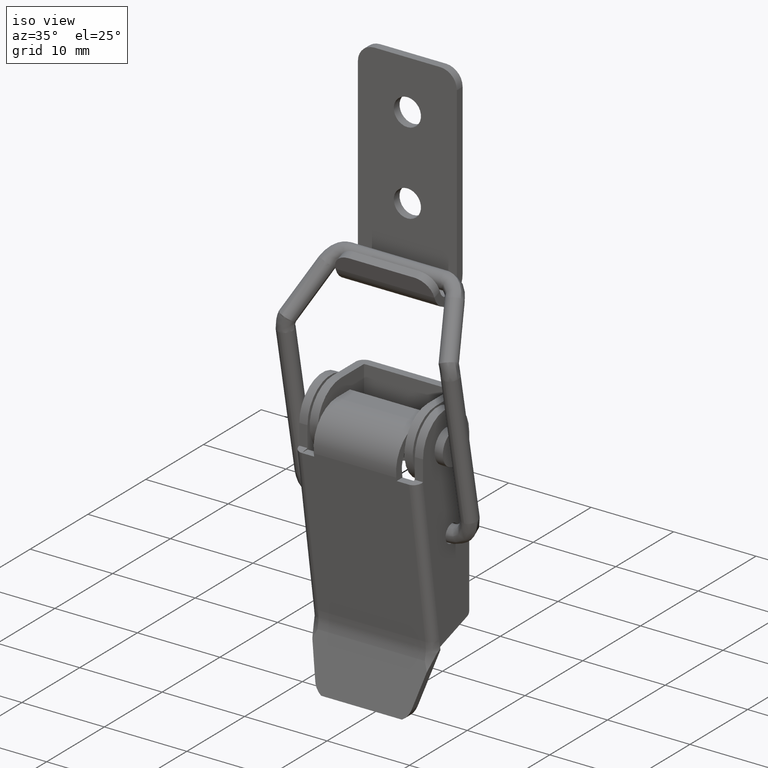
[diagram: clean part render]
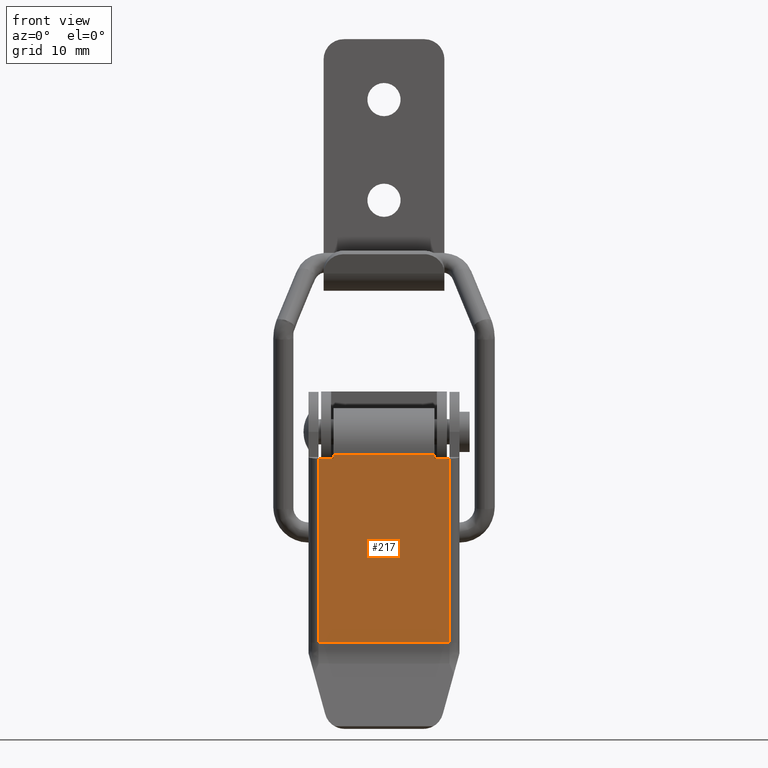
[diagram: tour spotlight — one face highlighted and labeled with its STEP entity id]
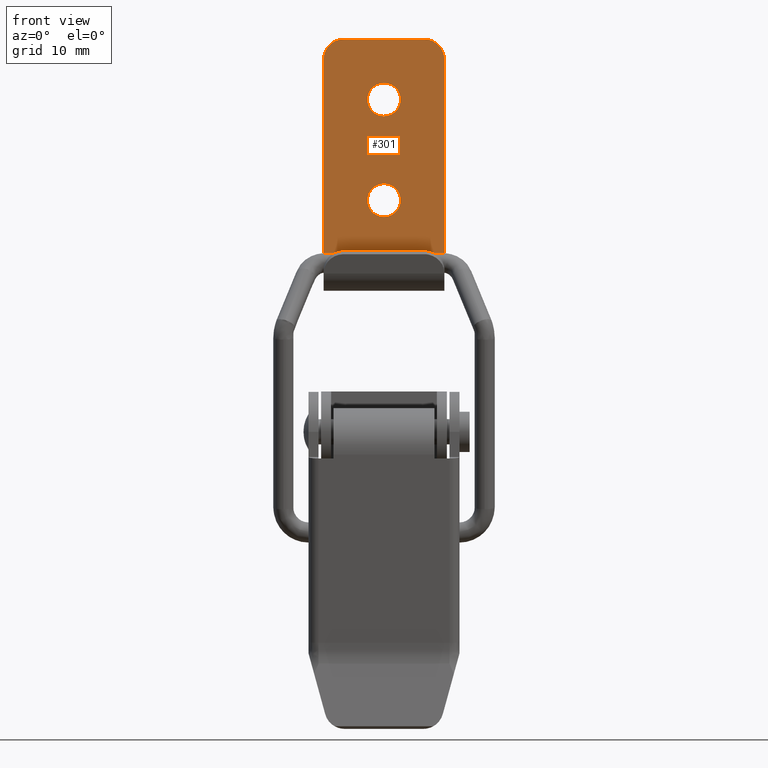
[diagram: tour spotlight — one face highlighted and labeled with its STEP entity id]
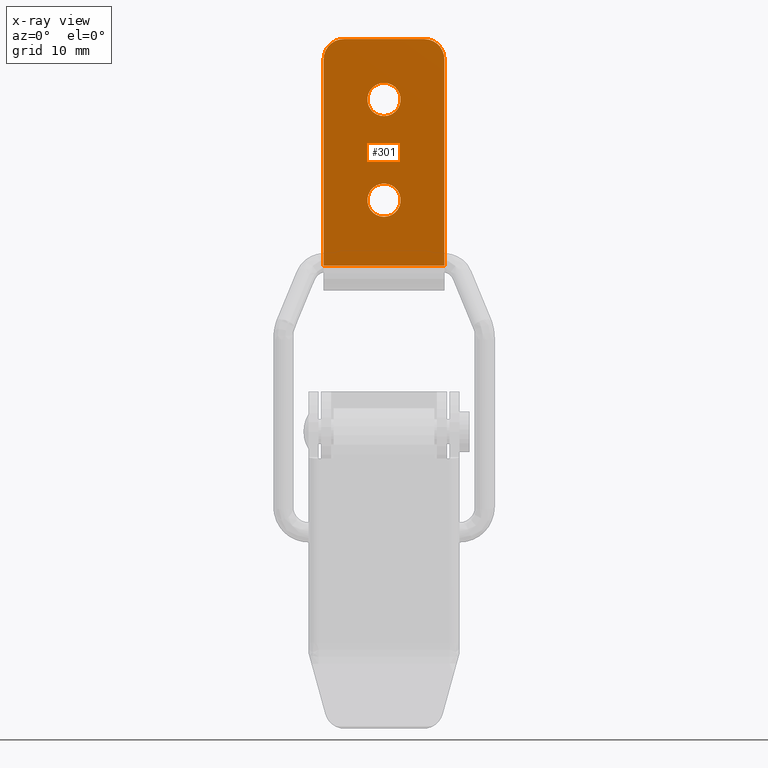
[diagram: x-ray of the same camera — body ghosted, this tour face saturated]
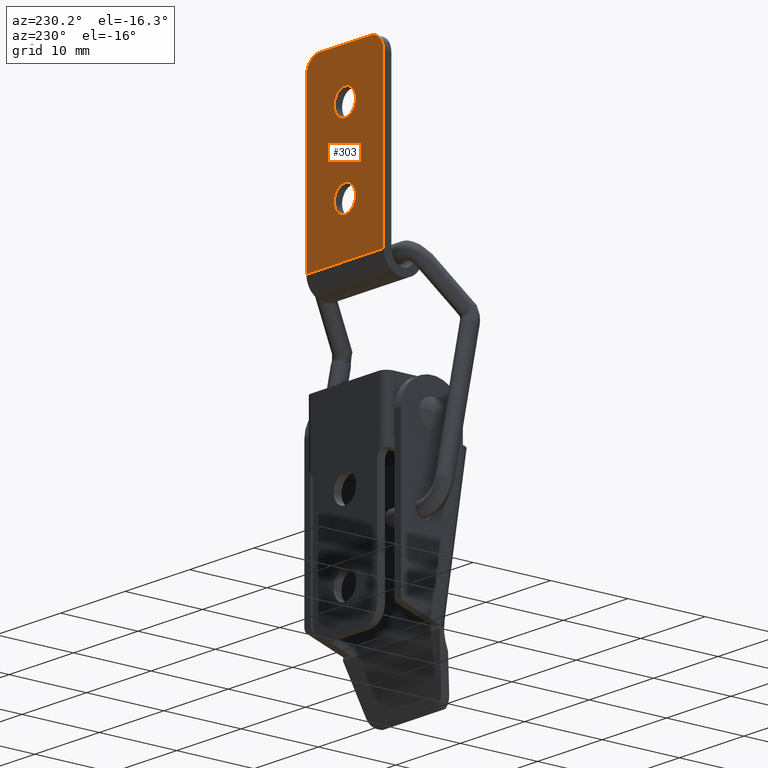
[diagram: tour spotlight — one face highlighted and labeled with its STEP entity id]
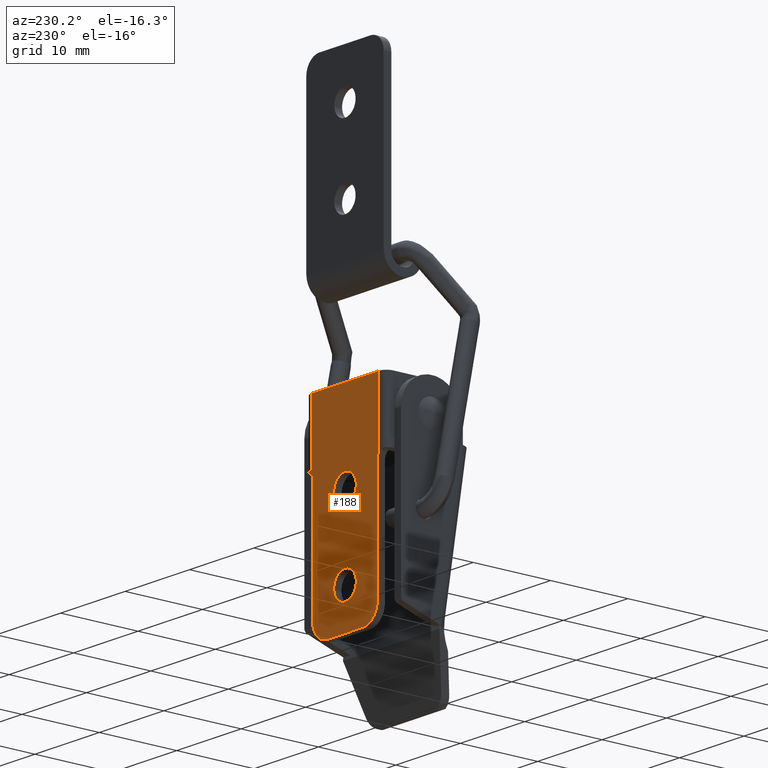
[diagram: tour spotlight — one face highlighted and labeled with its STEP entity id]
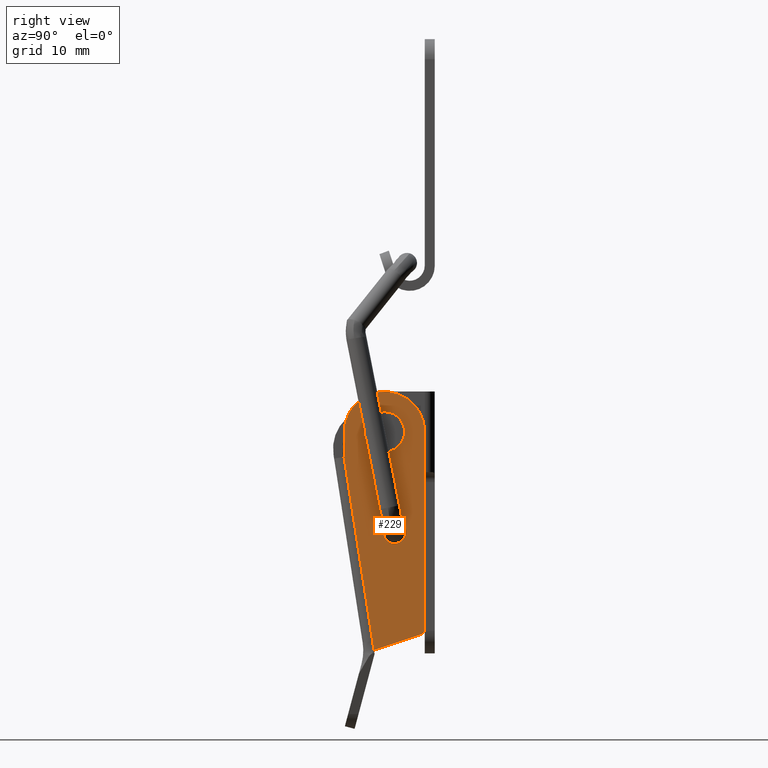
[diagram: tour spotlight — one face highlighted and labeled with its STEP entity id]
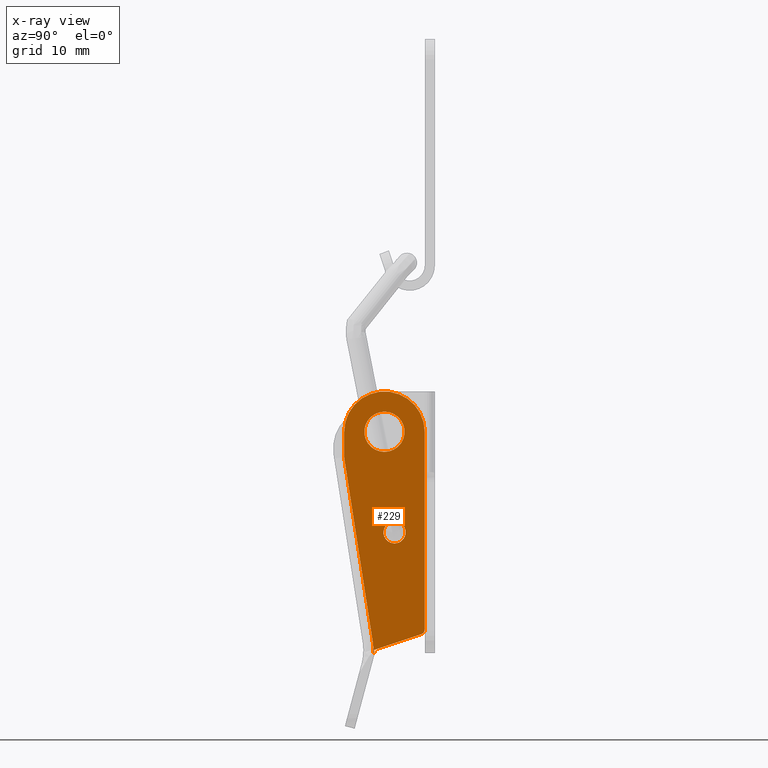
[diagram: x-ray of the same camera — body ghosted, this tour face saturated]
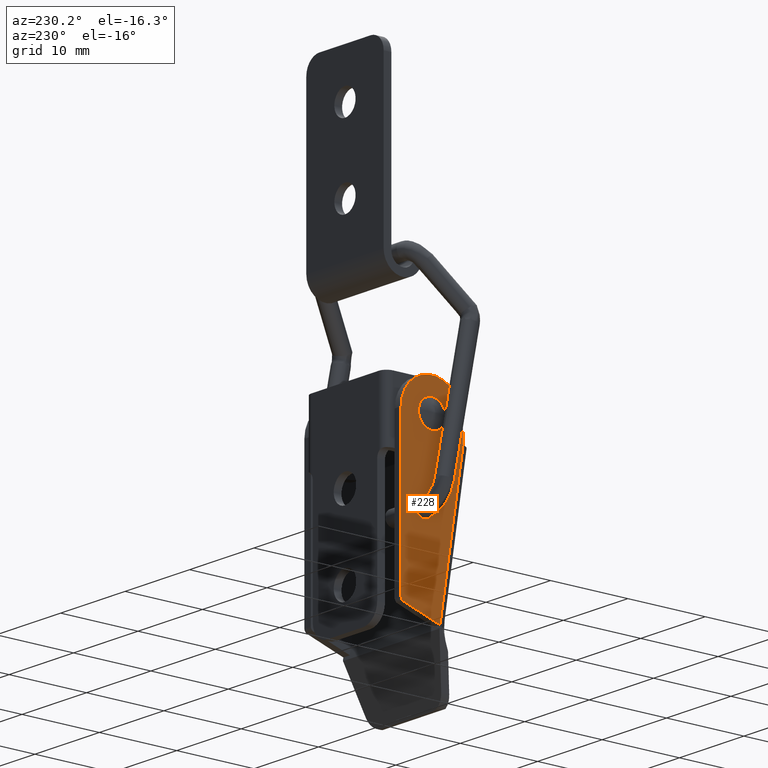
[diagram: tour spotlight — one face highlighted and labeled with its STEP entity id]
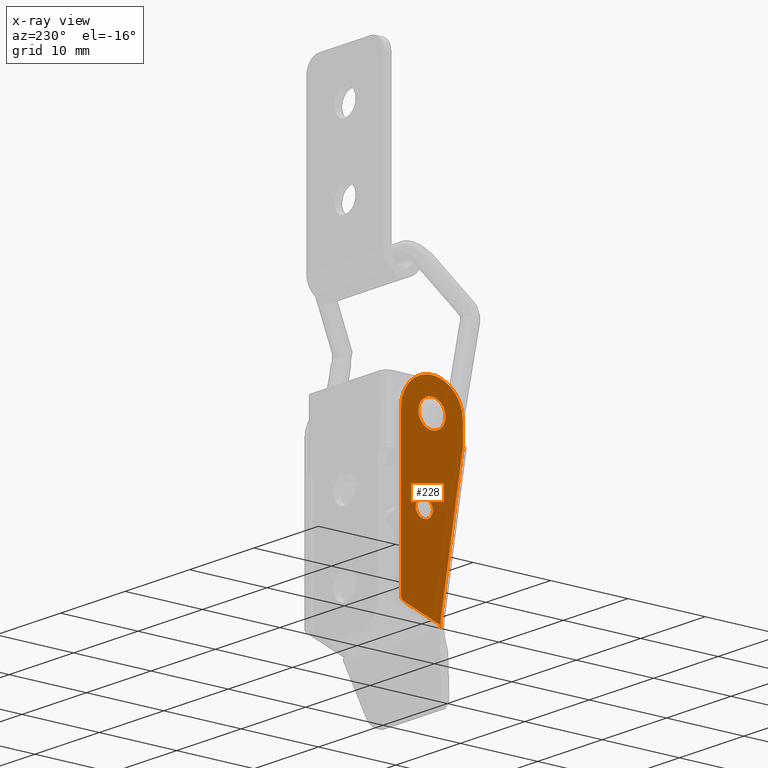
[diagram: x-ray of the same camera — body ghosted, this tour face saturated]
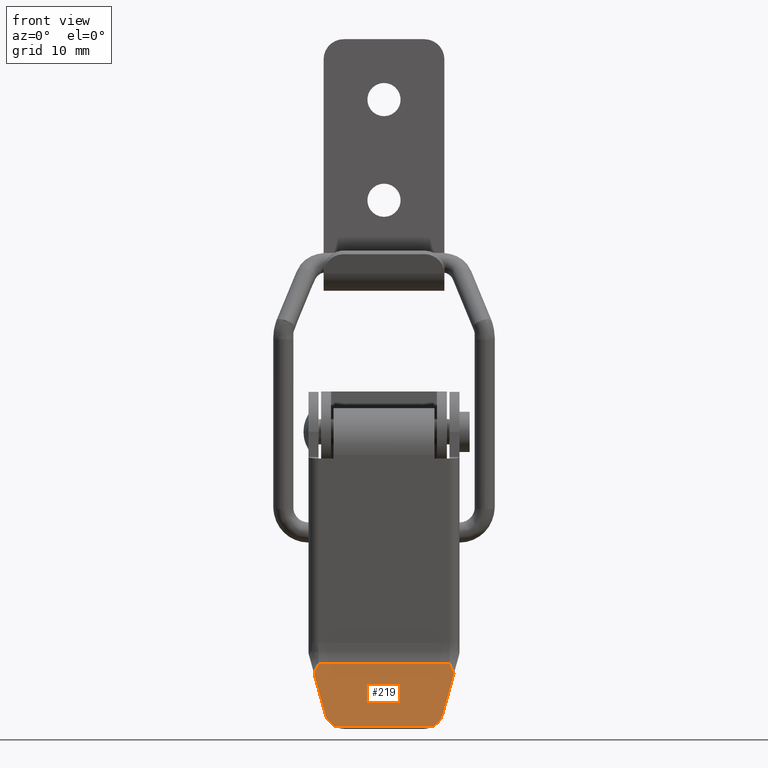
[diagram: tour spotlight — one face highlighted and labeled with its STEP entity id]
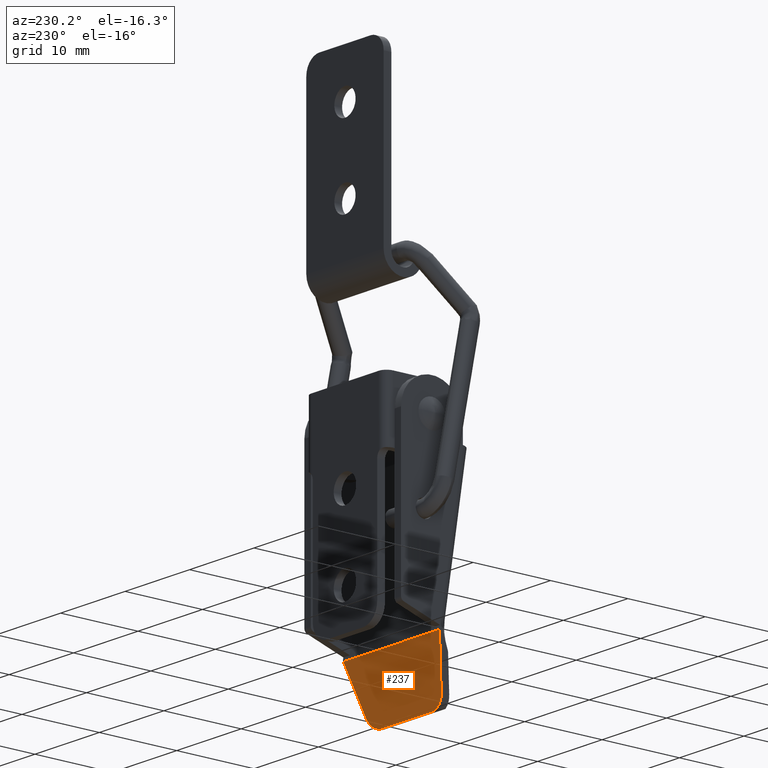
[diagram: tour spotlight — one face highlighted and labeled with its STEP entity id]
A machine part: a face-by-face anatomy tour. The part has 125 B-rep faces; the first image is the clean iso view, then the 8 largest visible faces are spotlighted one at a time (largest first), each with its STEP entity span.

Face 1 — front view, entity #217. In plain terms, the highlighted planar face has unit normal (0, -0.9882, -0.1532).
Definition (entity closure, byte-faithful):
#217=ADVANCED_FACE('',(#630),#629,.T.);
#629=PLANE('',#1758);
#630=FACE_OUTER_BOUND('',#1759,.T.);
#1755=CARTESIAN_POINT('',(-7.80000000000E+00,-5.34991273716E+00,-3.97358248649E-01));
#1756=DIRECTION('',(0.00000000000E+00,-9.88189297838E-01,-1.53238088081E-01));
#1757=DIRECTION('',(0.00000000000E+00,1.53238088081E-01,-9.88189297838E-01));
#1758=AXIS2_PLACEMENT_3D('',#1755,#1756,#1757);
#1759=EDGE_LOOP('',(#3782,#3783,#3784,#3785,#3786,#3787,#3788,#3789));
#3782=ORIENTED_EDGE('',*,*,#4374,.F.);
#3783=ORIENTED_EDGE('',*,*,#4375,.T.);
#3784=ORIENTED_EDGE('',*,*,#4376,.F.);
#3785=ORIENTED_EDGE('',*,*,#4377,.F.);
#3786=ORIENTED_EDGE('',*,*,#4378,.T.);
#3787=ORIENTED_EDGE('',*,*,#4379,.F.);
#3788=ORIENTED_EDGE('',*,*,#4380,.F.);
#3789=ORIENTED_EDGE('',*,*,#4381,.T.);
#4374=EDGE_CURVE('',#5139,#5234,#5235,.T.);
#4375=EDGE_CURVE('',#5139,#5241,#5242,.T.);
#4376=EDGE_CURVE('',#5248,#5241,#5249,.T.);
#4377=EDGE_CURVE('',#5255,#5248,#5256,.T.);
#4378=EDGE_CURVE('',#5255,#5262,#5263,.T.);
#4379=EDGE_CURVE('',#5269,#5262,#5270,.T.);
#4380=EDGE_CURVE('',#5276,#5269,#5277,.T.);
#4381=EDGE_CURVE('',#5276,#5234,#5283,.T.);
#5139=VERTEX_POINT('',#7172);
#5234=VERTEX_POINT('',#7238);
#5235=LINE('',#7239,#7240);
#5241=VERTEX_POINT('',#7242);
#5242=LINE('',#7243,#7244);
#5248=VERTEX_POINT('',#7246);
#5249=LINE('',#7247,#7248);
#5255=VERTEX_POINT('',#7250);
#5256=LINE('',#7251,#7252);
#5262=VERTEX_POINT('',#7254);
#5263=LINE('',#7255,#7256);
#5269=VERTEX_POINT('',#7258);
#5270=LINE('',#7259,#7260);
#5276=VERTEX_POINT('',#7262);
#5277=LINE('',#7263,#7264);
#5283=LINE('',#7266,#7267);
#7172=CARTESIAN_POINT('',(6.50000000000E+00,-2.16108505760E+00,-2.09612103891E+01));
#7238=CARTESIAN_POINT('',(-6.50000000000E+00,-2.16108505760E+00,-2.09612103891E+01));
#7239=CARTESIAN_POINT('',(6.50000000000E+00,-2.16108505760E+00,-2.09612103891E+01));
#7240=VECTOR('',#7241,1.30000000000E+01);
#7241=DIRECTION('',(-1.00000000000E+00,0.00000000000E+00,0.00000000000E+00));
#7242=CARTESIAN_POINT('',(6.50000000000E+00,-5.00000000000E+00,-2.65384700000E+00));
#7243=CARTESIAN_POINT('',(6.50000000000E+00,-2.16108505760E+00,-2.09612103891E+01));
#7244=VECTOR('',#7245,1.85261704707E+01);
#7245=DIRECTION('',(0.00000000000E+00,-1.53238088081E-01,9.88189297838E-01));
#7246=CARTESIAN_POINT('',(5.00000000000E+00,-5.00000000000E+00,-2.65384700000E+00));
#7247=CARTESIAN_POINT('',(5.00000000000E+00,-5.00000000000E+00,-2.65384700000E+00));
#7248=VECTOR('',#7249,1.50000000000E+00);
#7249=DIRECTION('',(1.00000000000E+00,0.00000000000E+00,0.00000000000E+00));
#7250=CARTESIAN_POINT('',(5.00000000000E+00,-5.06001931174E+00,-2.26679935233E+00));
#7251=CARTESIAN_POINT('',(5.00000000000E+00,-5.06001931174E+00,-2.26679935233E+00));
#7252=VECTOR('',#7253,3.91673587765E-01);
#7253=DIRECTION('',(0.00000000000E+00,1.53238088081E-01,-9.88189297838E-01));
#7254=CARTESIAN_POINT('',(-5.00000000000E+00,-5.06001931174E+00,-2.26679935233E+00));
#7255=CARTESIAN_POINT('',(5.00000000000E+00,-5.06001931174E+00,-2.26679935233E+00));
#7256=VECTOR('',#7257,1.00000000000E+01);
#7257=DIRECTION('',(-1.00000000000E+00,0.00000000000E+00,0.00000000000E+00));
#7258=CARTESIAN_POINT('',(-5.00000000000E+00,-5.00000000000E+00,-2.65384700000E+00));
#7259=CARTESIAN_POINT('',(-5.00000000000E+00,-5.00000000000E+00,-2.65384700000E+00));
#7260=VECTOR('',#7261,3.91673587765E-01);
#7261=DIRECTION('',(0.00000000000E+00,-1.53238088081E-01,9.88189297838E-01));
#7262=CARTESIAN_POINT('',(-6.50000000000E+00,-5.00000000000E+00,-2.65384700000E+00));
#7263=CARTESIAN_POINT('',(-6.50000000000E+00,-5.00000000000E+00,-2.65384700000E+00));
#7264=VECTOR('',#7265,1.50000000000E+00);
#7265=DIRECTION('',(1.00000000000E+00,0.00000000000E+00,0.00000000000E+00));
#7266=CARTESIAN_POINT('',(-6.50000000000E+00,-5.00000000000E+00,-2.65384700000E+00));
#7267=VECTOR('',#7268,1.85261704707E+01);
#7268=DIRECTION('',(0.00000000000E+00,1.53238088081E-01,-9.88189297838E-01));

Face 2 — front view, entity #301. An x-ray twin of the same camera follows (body ghosted, this face saturated) — the face is partly hidden behind the body. In plain terms, the highlighted planar face has unit normal (0, 1, -0).
Definition (entity closure, byte-faithful):
#301=ADVANCED_FACE('',(#1478,#1479,#1480),#1477,.F.);
#1477=PLANE('',#3559);
#1478=FACE_OUTER_BOUND('',#3560,.T.);
#1479=FACE_BOUND('',#3561,.T.);
#1480=FACE_BOUND('',#3562,.T.);
#3556=CARTESIAN_POINT('',(-7.20000000000E+00,1.50000000000E+00,2.50000000000E-01));
#3557=DIRECTION('',(0.00000000000E+00,1.00000000000E+00,-6.26427921881E-16));
#3558=DIRECTION('',(0.00000000000E+00,6.26427921881E-16,1.00000000000E+00));
#3559=AXIS2_PLACEMENT_3D('',#3556,#3557,#3558);
#3560=EDGE_LOOP('',(#4230,#4231,#4232,#4233,#4234,#4235));
#3561=EDGE_LOOP('',(#4236,#4237));
#3562=EDGE_LOOP('',(#4238,#4239));
#4230=ORIENTED_EDGE('',*,*,#4597,.T.);
#4231=ORIENTED_EDGE('',*,*,#4598,.T.);
#4232=ORIENTED_EDGE('',*,*,#4581,.T.);
#4233=ORIENTED_EDGE('',*,*,#4596,.F.);
#4234=ORIENTED_EDGE('',*,*,#4593,.F.);
#4235=ORIENTED_EDGE('',*,*,#4599,.T.);
#4236=ORIENTED_EDGE('',*,*,#4600,.F.);
#4237=ORIENTED_EDGE('',*,*,#4601,.F.);
#4238=ORIENTED_EDGE('',*,*,#4602,.F.);
#4239=ORIENTED_EDGE('',*,*,#4603,.F.);
#4581=EDGE_CURVE('',#6612,#6605,#6613,.T.);
#4593=EDGE_CURVE('',#6685,#6692,#6693,.T.);
#4596=EDGE_CURVE('',#6692,#6605,#6711,.T.);
#4597=EDGE_CURVE('',#6717,#6718,#6719,.T.);
#4598=EDGE_CURVE('',#6718,#6612,#6725,.T.);
#4599=EDGE_CURVE('',#6685,#6717,#6731,.T.);
#4600=EDGE_CURVE('',#6737,#6738,#6739,.T.);
#4601=EDGE_CURVE('',#6738,#6737,#6745,.T.);
#4602=EDGE_CURVE('',#6751,#6752,#6753,.T.);
#4603=EDGE_CURVE('',#6752,#6751,#6759,.T.);
#6605=VERTEX_POINT('',#8303);
#6612=VERTEX_POINT('',#8308);
#6613=LINE('',#8309,#8310);
#6685=VERTEX_POINT('',#8350);
#6692=VERTEX_POINT('',#8354);
#6693=LINE('',#8355,#8356);
#6711=LINE('',#8365,#8366);
#6717=VERTEX_POINT('',#8368);
#6718=VERTEX_POINT('',#8369);
#6719=LINE('',#8370,#8371);
#6725=CIRCLE('',#8376,2.00000000000E+00);
#6731=CIRCLE('',#8380,2.00000000000E+00);
#6737=VERTEX_POINT('',#8381);
#6738=VERTEX_POINT('',#8382);
#6739=CIRCLE('',#8386,1.65000000000E+00);
#6745=CIRCLE('',#8390,1.65000000000E+00);
#6751=VERTEX_POINT('',#8391);
#6752=VERTEX_POINT('',#8392);
#6753=CIRCLE('',#8396,1.65000000000E+00);
#6759=CIRCLE('',#8400,1.65000000000E+00);
#8303=CARTESIAN_POINT('',(-6.00000000000E+00,1.50000000000E+00,2.50000000000E+00));
#8308=CARTESIAN_POINT('',(-6.00000000000E+00,1.50000000000E+00,2.30000000000E+01));
#8309=CARTESIAN_POINT('',(-6.00000000000E+00,1.50000000000E+00,2.30000000000E+01));
#8310=VECTOR('',#8311,2.05000000000E+01);
#8311=DIRECTION('',(0.00000000000E+00,-6.28223760276E-16,-1.00000000000E+00));
#8350=CARTESIAN_POINT('',(6.00000000000E+00,1.50000000000E+00,2.30000000000E+01));
#8354=CARTESIAN_POINT('',(6.00000000000E+00,1.50000000000E+00,2.50000000000E+00));
#8355=CARTESIAN_POINT('',(6.00000000000E+00,1.50000000000E+00,2.30000000000E+01));
#8356=VECTOR('',#8357,2.05000000000E+01);
#8357=DIRECTION('',(0.00000000000E+00,-6.28223760276E-16,-1.00000000000E+00));
#8365=CARTESIAN_POINT('',(6.00000000000E+00,1.50000000000E+00,2.50000000000E+00));
#8366=VECTOR('',#8367,1.20000000000E+01);
#8367=DIRECTION('',(-1.00000000000E+00,0.00000000000E+00,0.00000000000E+00));
#8368=CARTESIAN_POINT('',(4.00000000000E+00,1.50000000000E+00,2.50000000000E+01));
#8369=CARTESIAN_POINT('',(-4.00000000000E+00,1.50000000000E+00,2.50000000000E+01));
#8370=CARTESIAN_POINT('',(4.00000000000E+00,1.50000000000E+00,2.50000000000E+01));
#8371=VECTOR('',#8372,8.00000000000E+00);
#8372=DIRECTION('',(-1.00000000000E+00,0.00000000000E+00,0.00000000000E+00));
#8373=CARTESIAN_POINT('',(-4.00000000000E+00,1.50000000000E+00,2.30000000000E+01));
#8374=DIRECTION('',(0.00000000000E+00,-1.00000000000E+00,6.26427921881E-16));
#8375=DIRECTION('',(-0.00000000000E+00,-6.26427921881E-16,-1.00000000000E+00));
#8376=AXIS2_PLACEMENT_3D('',#8373,#8374,#8375);
#8377=CARTESIAN_POINT('',(4.00000000000E+00,1.50000000000E+00,2.30000000000E+01));
#8378=DIRECTION('',(0.00000000000E+00,-1.00000000000E+00,6.26427921881E-16));
#8379=DIRECTION('',(-0.00000000000E+00,-6.26427921881E-16,-1.00000000000E+00));
#8380=AXIS2_PLACEMENT_3D('',#8377,#8378,#8379);
#8381=CARTESIAN_POINT('',(2.22044604925E-16,1.50000000000E+00,1.73500000000E+01));
#8382=CARTESIAN_POINT('',(0.00000000000E+00,1.50000000000E+00,2.06500000000E+01));
#8383=CARTESIAN_POINT('',(0.00000000000E+00,1.50000000000E+00,1.90000000000E+01));
#8384=DIRECTION('',(-0.00000000000E+00,-1.00000000000E+00,0.00000000000E+00));
#8385=DIRECTION('',(-1.22460635382E-16,0.00000000000E+00,1.00000000000E+00));
#8386=AXIS2_PLACEMENT_3D('',#8383,#8384,#8385);
#8387=CARTESIAN_POINT('',(0.00000000000E+00,1.50000000000E+00,1.90000000000E+01));
#8388=DIRECTION('',(-0.00000000000E+00,-1.00000000000E+00,0.00000000000E+00));
#8389=DIRECTION('',(-1.22460635382E-16,0.00000000000E+00,1.00000000000E+00));
#8390=AXIS2_PLACEMENT_3D('',#8387,#8388,#8389);
#8391=CARTESIAN_POINT('',(2.22044604925E-16,1.50000000000E+00,7.35000000000E+00));
#8392=CARTESIAN_POINT('',(0.00000000000E+00,1.50000000000E+00,1.06500000000E+01));
#8393=CARTESIAN_POINT('',(0.00000000000E+00,1.50000000000E+00,9.00000000000E+00));
#8394=DIRECTION('',(-0.00000000000E+00,-1.00000000000E+00,0.00000000000E+00));
#8395=DIRECTION('',(-1.22460635382E-16,0.00000000000E+00,1.00000000000E+00));
#8396=AXIS2_PLACEMENT_3D('',#8393,#8394,#8395);
#8397=CARTESIAN_POINT('',(0.00000000000E+00,1.50000000000E+00,9.00000000000E+00));
#8398=DIRECTION('',(-0.00000000000E+00,-1.00000000000E+00,0.00000000000E+00));
#8399=DIRECTION('',(-1.22460635382E-16,0.00000000000E+00,1.00000000000E+00));
#8400=AXIS2_PLACEMENT_3D('',#8397,#8398,#8399);

Face 3 — auxiliary view, entity #303. In plain terms, the highlighted planar face has unit normal (0, -1, 0).
Definition (entity closure, byte-faithful):
#303=ADVANCED_FACE('',(#1500,#1501,#1502),#1499,.F.);
#1499=PLANE('',#3571);
#1500=FACE_OUTER_BOUND('',#3572,.T.);
#1501=FACE_BOUND('',#3573,.T.);
#1502=FACE_BOUND('',#3574,.T.);
#3568=CARTESIAN_POINT('',(-7.20000000000E+00,2.50000000000E+00,2.72500000000E+01));
#3569=DIRECTION('',(0.00000000000E+00,-1.00000000000E+00,6.36065274525E-16));
#3570=DIRECTION('',(0.00000000000E+00,-6.36065274525E-16,-1.00000000000E+00));
#3571=AXIS2_PLACEMENT_3D('',#3568,#3569,#3570);
#3572=EDGE_LOOP('',(#4244,#4245,#4246,#4247,#4248,#4249));
#3573=EDGE_LOOP('',(#4250,#4251));
#3574=EDGE_LOOP('',(#4252,#4253));
#4244=ORIENTED_EDGE('',*,*,#4583,.T.);
#4245=ORIENTED_EDGE('',*,*,#4607,.T.);
#4246=ORIENTED_EDGE('',*,*,#4604,.F.);
#4247=ORIENTED_EDGE('',*,*,#4608,.T.);
#4248=ORIENTED_EDGE('',*,*,#4591,.F.);
#4249=ORIENTED_EDGE('',*,*,#4609,.T.);
#4250=ORIENTED_EDGE('',*,*,#4610,.T.);
#4251=ORIENTED_EDGE('',*,*,#4611,.T.);
#4252=ORIENTED_EDGE('',*,*,#4612,.T.);
#4253=ORIENTED_EDGE('',*,*,#4613,.T.);
#4583=EDGE_CURVE('',#6626,#6619,#6627,.T.);
#4591=EDGE_CURVE('',#6671,#6678,#6679,.T.);
#4604=EDGE_CURVE('',#6765,#6766,#6767,.T.);
#4607=EDGE_CURVE('',#6619,#6766,#6785,.T.);
#4608=EDGE_CURVE('',#6765,#6678,#6791,.T.);
#4609=EDGE_CURVE('',#6671,#6626,#6797,.T.);
#4610=EDGE_CURVE('',#6803,#6804,#6805,.T.);
#4611=EDGE_CURVE('',#6804,#6803,#6811,.T.);
#4612=EDGE_CURVE('',#6817,#6818,#6819,.T.);
#4613=EDGE_CURVE('',#6818,#6817,#6825,.T.);
#6619=VERTEX_POINT('',#8312);
#6626=VERTEX_POINT('',#8316);
#6627=LINE('',#8317,#8318);
#6671=VERTEX_POINT('',#8341);
#6678=VERTEX_POINT('',#8346);
#6679=LINE('',#8347,#8348);
#6765=VERTEX_POINT('',#8401);
#6766=VERTEX_POINT('',#8402);
#6767=LINE('',#8403,#8404);
#6785=CIRCLE('',#8415,2.00000000000E+00);
#6791=CIRCLE('',#8419,2.00000000000E+00);
#6797=LINE('',#8420,#8421);
#6803=VERTEX_POINT('',#8423);
#6804=VERTEX_POINT('',#8424);
#6805=CIRCLE('',#8428,1.65000000000E+00);
#6811=CIRCLE('',#8432,1.65000000000E+00);
#6817=VERTEX_POINT('',#8433);
#6818=VERTEX_POINT('',#8434);
#6819=CIRCLE('',#8438,1.65000000000E+00);
#6825=CIRCLE('',#8442,1.65000000000E+00);
#8312=CARTESIAN_POINT('',(-6.00000000000E+00,2.50000000000E+00,2.30000000000E+01));
#8316=CARTESIAN_POINT('',(-6.00000000000E+00,2.50000000000E+00,2.50000000000E+00));
#8317=CARTESIAN_POINT('',(-6.00000000000E+00,2.50000000000E+00,2.50000000000E+00));
#8318=VECTOR('',#8319,2.05000000000E+01);
#8319=DIRECTION('',(0.00000000000E+00,6.28223760276E-16,1.00000000000E+00));
#8341=CARTESIAN_POINT('',(6.00000000000E+00,2.50000000000E+00,2.50000000000E+00));
#8346=CARTESIAN_POINT('',(6.00000000000E+00,2.50000000000E+00,2.30000000000E+01));
#8347=CARTESIAN_POINT('',(6.00000000000E+00,2.50000000000E+00,2.50000000000E+00));
#8348=VECTOR('',#8349,2.05000000000E+01);
#8349=DIRECTION('',(0.00000000000E+00,6.28223760276E-16,1.00000000000E+00));
#8401=CARTESIAN_POINT('',(4.00000000000E+00,2.50000000000E+00,2.50000000000E+01));
#8402=CARTESIAN_POINT('',(-4.00000000000E+00,2.50000000000E+00,2.50000000000E+01));
#8403=CARTESIAN_POINT('',(4.00000000000E+00,2.50000000000E+00,2.50000000000E+01));
#8404=VECTOR('',#8405,8.00000000000E+00);
#8405=DIRECTION('',(-1.00000000000E+00,0.00000000000E+00,0.00000000000E+00));
#8412=CARTESIAN_POINT('',(-4.00000000000E+00,2.50000000000E+00,2.30000000000E+01));
#8413=DIRECTION('',(-0.00000000000E+00,1.00000000000E+00,-6.36065274525E-16));
#8414=DIRECTION('',(-0.00000000000E+00,6.36065274525E-16,1.00000000000E+00));
#8415=AXIS2_PLACEMENT_3D('',#8412,#8413,#8414);
#8416=CARTESIAN_POINT('',(4.00000000000E+00,2.50000000000E+00,2.30000000000E+01));
#8417=DIRECTION('',(-0.00000000000E+00,1.00000000000E+00,-6.36065274525E-16));
#8418=DIRECTION('',(-0.00000000000E+00,6.36065274525E-16,1.00000000000E+00));
#8419=AXIS2_PLACEMENT_3D('',#8416,#8417,#8418);
#8420=CARTESIAN_POINT('',(6.00000000000E+00,2.50000000000E+00,2.50000000000E+00));
#8421=VECTOR('',#8422,1.20000000000E+01);
#8422=DIRECTION('',(-1.00000000000E+00,0.00000000000E+00,0.00000000000E+00));
#8423=CARTESIAN_POINT('',(0.00000000000E+00,2.50000000000E+00,2.06500000000E+01));
#8424=CARTESIAN_POINT('',(2.22044604925E-16,2.50000000000E+00,1.73500000000E+01));
#8425=CARTESIAN_POINT('',(0.00000000000E+00,2.50000000000E+00,1.90000000000E+01));
#8426=DIRECTION('',(-0.00000000000E+00,-1.00000000000E+00,0.00000000000E+00));
#8427=DIRECTION('',(-1.22460635382E-16,0.00000000000E+00,1.00000000000E+00));
#8428=AXIS2_PLACEMENT_3D('',#8425,#8426,#8427);
#8429=CARTESIAN_POINT('',(0.00000000000E+00,2.50000000000E+00,1.90000000000E+01));
#8430=DIRECTION('',(-0.00000000000E+00,-1.00000000000E+00,0.00000000000E+00));
#8431=DIRECTION('',(-1.22460635382E-16,0.00000000000E+00,1.00000000000E+00));
#8432=AXIS2_PLACEMENT_3D('',#8429,#8430,#8431);
#8433=CARTESIAN_POINT('',(0.00000000000E+00,2.50000000000E+00,1.06500000000E+01));
#8434=CARTESIAN_POINT('',(2.22044604925E-16,2.50000000000E+00,7.35000000000E+00));
#8435=CARTESIAN_POINT('',(0.00000000000E+00,2.50000000000E+00,9.00000000000E+00));
#8436=DIRECTION('',(-0.00000000000E+00,-1.00000000000E+00,0.00000000000E+00));
#8437=DIRECTION('',(-1.22460635382E-16,0.00000000000E+00,1.00000000000E+00));
#8438=AXIS2_PLACEMENT_3D('',#8435,#8436,#8437);
#8439=CARTESIAN_POINT('',(0.00000000000E+00,2.50000000000E+00,9.00000000000E+00));
#8440=DIRECTION('',(-0.00000000000E+00,-1.00000000000E+00,0.00000000000E+00));
#8441=DIRECTION('',(-1.22460635382E-16,0.00000000000E+00,1.00000000000E+00));
#8442=AXIS2_PLACEMENT_3D('',#8439,#8440,#8441);

Face 4 — auxiliary view, entity #188. In plain terms, the highlighted planar face has unit normal (0, 1, 0).
Definition (entity closure, byte-faithful):
#188=ADVANCED_FACE('',(#334,#335,#336),#333,.T.);
#333=PLANE('',#1596);
#334=FACE_OUTER_BOUND('',#1597,.T.);
#335=FACE_BOUND('',#1598,.T.);
#336=FACE_BOUND('',#1599,.T.);
#1593=CARTESIAN_POINT('',(-6.30000000000E+00,0.00000000000E+00,-2.86000000000E+01));
#1594=DIRECTION('',(0.00000000000E+00,1.00000000000E+00,0.00000000000E+00));
#1595=DIRECTION('',(0.00000000000E+00,0.00000000000E+00,1.00000000000E+00));
#1596=AXIS2_PLACEMENT_3D('',#1593,#1594,#1595);
#1597=EDGE_LOOP('',(#3631,#3632,#3633,#3634,#3635,#3636,#3637,#3638,#3639,#3640));
#1598=EDGE_LOOP('',(#3641,#3642));
#1599=EDGE_LOOP('',(#3643,#3644));
#3631=ORIENTED_EDGE('',*,*,#4303,.F.);
#3632=ORIENTED_EDGE('',*,*,#4283,.T.);
#3633=ORIENTED_EDGE('',*,*,#4304,.T.);
#3634=ORIENTED_EDGE('',*,*,#4305,.F.);
#3635=ORIENTED_EDGE('',*,*,#4306,.F.);
#3636=ORIENTED_EDGE('',*,*,#4307,.F.);
#3637=ORIENTED_EDGE('',*,*,#4308,.F.);
#3638=ORIENTED_EDGE('',*,*,#4309,.F.);
#3639=ORIENTED_EDGE('',*,*,#4310,.T.);
#3640=ORIENTED_EDGE('',*,*,#4311,.T.);
#3641=ORIENTED_EDGE('',*,*,#4312,.T.);
#3642=ORIENTED_EDGE('',*,*,#4313,.T.);
#3643=ORIENTED_EDGE('',*,*,#4314,.T.);
#3644=ORIENTED_EDGE('',*,*,#4315,.T.);
#4283=EDGE_CURVE('',#4626,#4618,#4627,.T.);
#4303=EDGE_CURVE('',#4626,#4765,#4766,.T.);
#4304=EDGE_CURVE('',#4618,#4772,#4773,.T.);
#4305=EDGE_CURVE('',#4779,#4772,#4780,.T.);
#4306=EDGE_CURVE('',#4786,#4779,#4787,.T.);
#4307=EDGE_CURVE('',#4793,#4786,#4794,.T.);
#4308=EDGE_CURVE('',#4800,#4793,#4801,.T.);
#4309=EDGE_CURVE('',#4807,#4800,#4808,.T.);
#4310=EDGE_CURVE('',#4807,#4814,#4815,.T.);
#4311=EDGE_CURVE('',#4814,#4765,#4821,.T.);
#4312=EDGE_CURVE('',#4827,#4828,#4829,.T.);
#4313=EDGE_CURVE('',#4828,#4827,#4835,.T.);
#4314=EDGE_CURVE('',#4841,#4842,#4843,.T.);
#4315=EDGE_CURVE('',#4842,#4841,#4849,.T.);
#4618=VERTEX_POINT('',#6855);
#4626=VERTEX_POINT('',#6863);
#4627=LINE('',#6864,#6865);
#4765=VERTEX_POINT('',#6952);
#4766=LINE('',#6953,#6954);
#4772=VERTEX_POINT('',#6956);
#4773=CIRCLE('',#6960,1.00000000000E+00);
#4779=VERTEX_POINT('',#6961);
#4780=LINE('',#6962,#6963);
#4786=VERTEX_POINT('',#6965);
#4787=CIRCLE('',#6969,2.25000000000E+00);
#4793=VERTEX_POINT('',#6970);
#4794=LINE('',#6971,#6972);
#4800=VERTEX_POINT('',#6974);
#4801=CIRCLE('',#6978,2.25000000000E+00);
#4807=VERTEX_POINT('',#6979);
#4808=LINE('',#6980,#6981);
#4814=VERTEX_POINT('',#6983);
#4815=CIRCLE('',#6987,1.00000000000E+00);
#4821=LINE('',#6988,#6989);
#4827=VERTEX_POINT('',#6991);
#4828=VERTEX_POINT('',#6992);
#4829=CIRCLE('',#6996,1.75000000000E+00);
#4835=CIRCLE('',#7000,1.75000000000E+00);
#4841=VERTEX_POINT('',#7001);
#4842=VERTEX_POINT('',#7002);
#4843=CIRCLE('',#7006,1.75000000000E+00);
#4849=CIRCLE('',#7010,1.75000000000E+00);
#6855=CARTESIAN_POINT('',(5.25000000000E+00,0.00000000000E+00,-8.33856217223E+00));
#6863=CARTESIAN_POINT('',(5.25000000000E+00,0.00000000000E+00,0.00000000000E+00));
#6864=CARTESIAN_POINT('',(5.25000000000E+00,0.00000000000E+00,0.00000000000E+00));
#6865=VECTOR('',#6866,8.33856217223E+00);
#6866=DIRECTION('',(0.00000000000E+00,0.00000000000E+00,-1.00000000000E+00));
#6952=CARTESIAN_POINT('',(-5.25000000000E+00,0.00000000000E+00,0.00000000000E+00));
#6953=CARTESIAN_POINT('',(5.25000000000E+00,0.00000000000E+00,0.00000000000E+00));
#6954=VECTOR('',#6955,1.05000000000E+01);
#6955=DIRECTION('',(-1.00000000000E+00,0.00000000000E+00,0.00000000000E+00));
#6956=CARTESIAN_POINT('',(5.00000000000E+00,0.00000000000E+00,-9.00000000000E+00));
#6957=CARTESIAN_POINT('',(6.00000000000E+00,0.00000000000E+00,-9.00000000000E+00));
#6958=DIRECTION('',(0.00000000000E+00,-1.00000000000E+00,0.00000000000E+00));
#6959=DIRECTION('',(-0.00000000000E+00,-0.00000000000E+00,-1.00000000000E+00));
#6960=AXIS2_PLACEMENT_3D('',#6957,#6958,#6959);
#6961=CARTESIAN_POINT('',(5.00000000000E+00,0.00000000000E+00,-2.37500000000E+01));
#6962=CARTESIAN_POINT('',(5.00000000000E+00,0.00000000000E+00,-2.37500000000E+01));
#6963=VECTOR('',#6964,1.47500000000E+01);
#6964=DIRECTION('',(0.00000000000E+00,0.00000000000E+00,1.00000000000E+00));
#6965=CARTESIAN_POINT('',(2.75000000000E+00,0.00000000000E+00,-2.60000000000E+01));
#6966=CARTESIAN_POINT('',(2.75000000000E+00,0.00000000000E+00,-2.37500000000E+01));
#6967=DIRECTION('',(0.00000000000E+00,-1.00000000000E+00,0.00000000000E+00));
#6968=DIRECTION('',(-0.00000000000E+00,-0.00000000000E+00,-1.00000000000E+00));
#6969=AXIS2_PLACEMENT_3D('',#6966,#6967,#6968);
#6970=CARTESIAN_POINT('',(-2.75000000000E+00,0.00000000000E+00,-2.60000000000E+01));
#6971=CARTESIAN_POINT('',(-2.75000000000E+00,0.00000000000E+00,-2.60000000000E+01));
#6972=VECTOR('',#6973,5.50000000000E+00);
#6973=DIRECTION('',(1.00000000000E+00,0.00000000000E+00,0.00000000000E+00));
#6974=CARTESIAN_POINT('',(-5.00000000000E+00,0.00000000000E+00,-2.37500000000E+01));
#6975=CARTESIAN_POINT('',(-2.75000000000E+00,0.00000000000E+00,-2.37500000000E+01));
#6976=DIRECTION('',(0.00000000000E+00,-1.00000000000E+00,0.00000000000E+00));
#6977=DIRECTION('',(-0.00000000000E+00,-0.00000000000E+00,-1.00000000000E+00));
#6978=AXIS2_PLACEMENT_3D('',#6975,#6976,#6977);
#6979=CARTESIAN_POINT('',(-5.00000000000E+00,0.00000000000E+00,-9.00000000000E+00));
#6980=CARTESIAN_POINT('',(-5.00000000000E+00,0.00000000000E+00,-9.00000000000E+00));
#6981=VECTOR('',#6982,1.47500000000E+01);
#6982=DIRECTION('',(0.00000000000E+00,0.00000000000E+00,-1.00000000000E+00));
#6983=CARTESIAN_POINT('',(-5.25000000000E+00,0.00000000000E+00,-8.33856217223E+00));
#6984=CARTESIAN_POINT('',(-6.00000000000E+00,0.00000000000E+00,-9.00000000000E+00));
#6985=DIRECTION('',(0.00000000000E+00,-1.00000000000E+00,0.00000000000E+00));
#6986=DIRECTION('',(-0.00000000000E+00,-0.00000000000E+00,-1.00000000000E+00));
#6987=AXIS2_PLACEMENT_3D('',#6984,#6985,#6986);
#6988=CARTESIAN_POINT('',(-5.25000000000E+00,0.00000000000E+00,-8.33856217223E+00));
#6989=VECTOR('',#6990,8.33856217223E+00);
#6990=DIRECTION('',(0.00000000000E+00,0.00000000000E+00,1.00000000000E+00));
#6991=CARTESIAN_POINT('',(0.00000000000E+00,0.00000000000E+00,-1.92500000000E+01));
#6992=CARTESIAN_POINT('',(2.22044604925E-16,0.00000000000E+00,-2.27500000000E+01));
#6993=CARTESIAN_POINT('',(0.00000000000E+00,0.00000000000E+00,-2.10000000000E+01));
#6994=DIRECTION('',(-0.00000000000E+00,-1.00000000000E+00,0.00000000000E+00));
#6995=DIRECTION('',(-1.22460635382E-16,0.00000000000E+00,1.00000000000E+00));
#6996=AXIS2_PLACEMENT_3D('',#6993,#6994,#6995);
#6997=CARTESIAN_POINT('',(0.00000000000E+00,0.00000000000E+00,-2.10000000000E+01));
#6998=DIRECTION('',(-0.00000000000E+00,-1.00000000000E+00,0.00000000000E+00));
#6999=DIRECTION('',(-1.22460635382E-16,0.00000000000E+00,1.00000000000E+00));
#7000=AXIS2_PLACEMENT_3D('',#6997,#6998,#6999);
#7001=CARTESIAN_POINT('',(0.00000000000E+00,0.00000000000E+00,-9.25000000000E+00));
#7002=CARTESIAN_POINT('',(2.22044604925E-16,0.00000000000E+00,-1.27500000000E+01));
#7003=CARTESIAN_POINT('',(0.00000000000E+00,0.00000000000E+00,-1.10000000000E+01));
#7004=DIRECTION('',(-0.00000000000E+00,-1.00000000000E+00,0.00000000000E+00));
#7005=DIRECTION('',(-1.22460635382E-16,0.00000000000E+00,1.00000000000E+00));
#7006=AXIS2_PLACEMENT_3D('',#7003,#7004,#7005);
#7007=CARTESIAN_POINT('',(0.00000000000E+00,0.00000000000E+00,-1.10000000000E+01));
#7008=DIRECTION('',(-0.00000000000E+00,-1.00000000000E+00,0.00000000000E+00));
#7009=DIRECTION('',(-1.22460635382E-16,0.00000000000E+00,1.00000000000E+00));
#7010=AXIS2_PLACEMENT_3D('',#7007,#7008,#7009);

Face 5 — right view, entity #229. An x-ray twin of the same camera follows (body ghosted, this face saturated) — the face is partly hidden behind the body. In plain terms, the highlighted planar face has unit normal (1, 0, 0).
Definition (entity closure, byte-faithful):
#229=ADVANCED_FACE('',(#752,#753,#754),#751,.T.);
#751=PLANE('',#1831);
#752=FACE_OUTER_BOUND('',#1832,.T.);
#753=FACE_BOUND('',#1833,.T.);
#754=FACE_BOUND('',#1834,.T.);
#1828=CARTESIAN_POINT('',(7.50000000000E+00,-4.81279049576E+00,6.60000000000E+00));
#1829=DIRECTION('',(1.00000000000E+00,0.00000000000E+00,0.00000000000E+00));
#1830=DIRECTION('',(0.00000000000E+00,0.00000000000E+00,-1.00000000000E+00));
#1831=AXIS2_PLACEMENT_3D('',#1828,#1829,#1830);
#1832=EDGE_LOOP('',(#3857,#3858,#3859,#3860,#3861,#3862,#3863,#3864,#3865,#3866));
#1833=EDGE_LOOP('',(#3867,#3868));
#1834=EDGE_LOOP('',(#3869,#3870));
#3857=ORIENTED_EDGE('',*,*,#4431,.F.);
#3858=ORIENTED_EDGE('',*,*,#4412,.T.);
#3859=ORIENTED_EDGE('',*,*,#4432,.F.);
#3860=ORIENTED_EDGE('',*,*,#4433,.F.);
#3861=ORIENTED_EDGE('',*,*,#4434,.F.);
#3862=ORIENTED_EDGE('',*,*,#4435,.F.);
#3863=ORIENTED_EDGE('',*,*,#4436,.T.);
#3864=ORIENTED_EDGE('',*,*,#4364,.T.);
#3865=ORIENTED_EDGE('',*,*,#4365,.T.);
#3866=ORIENTED_EDGE('',*,*,#4437,.F.);
#3867=ORIENTED_EDGE('',*,*,#4438,.F.);
#3868=ORIENTED_EDGE('',*,*,#4439,.F.);
#3869=ORIENTED_EDGE('',*,*,#4440,.T.);
#3870=ORIENTED_EDGE('',*,*,#4441,.T.);
#4364=EDGE_CURVE('',#5138,#5160,#5167,.T.);
#4365=EDGE_CURVE('',#5160,#5173,#5174,.T.);
#4412=EDGE_CURVE('',#5492,#5493,#5494,.T.);
#4431=EDGE_CURVE('',#5492,#5622,#5623,.T.);
#4432=EDGE_CURVE('',#5629,#5493,#5630,.T.);
#4433=EDGE_CURVE('',#5636,#5629,#5637,.T.);
#4434=EDGE_CURVE('',#5643,#5636,#5644,.T.);
#4435=EDGE_CURVE('',#5650,#5643,#5651,.T.);
#4436=EDGE_CURVE('',#5650,#5138,#5657,.T.);
#4437=EDGE_CURVE('',#5622,#5173,#5663,.T.);
#4438=EDGE_CURVE('',#5669,#5670,#5671,.T.);
#4439=EDGE_CURVE('',#5670,#5669,#5677,.T.);
#4440=EDGE_CURVE('',#5683,#5684,#5685,.T.);
#4441=EDGE_CURVE('',#5684,#5683,#5691,.T.);
#5138=VERTEX_POINT('',#7171);
#5160=VERTEX_POINT('',#7187);
#5167=CIRCLE('',#7203,6.00000000000E+00);
#5173=VERTEX_POINT('',#7204);
#5174=LINE('',#7205,#7206);
#5492=VERTEX_POINT('',#7390);
#5493=VERTEX_POINT('',#7391);
#5494=CIRCLE('',#7395,5.00000000000E-01);
#5622=VERTEX_POINT('',#7481);
#5623=LINE('',#7482,#7483);
#5629=VERTEX_POINT('',#7485);
#5630=LINE('',#7486,#7487);
#5636=VERTEX_POINT('',#7489);
#5637=CIRCLE('',#7493,4.00000000000E+00);
#5643=VERTEX_POINT('',#7494);
#5644=LINE('',#7495,#7496);
#5650=VERTEX_POINT('',#7498);
#5651=LINE('',#7499,#7500);
#5657=LINE('',#7502,#7503);
#5663=LINE('',#7505,#7506);
#5669=VERTEX_POINT('',#7508);
#5670=VERTEX_POINT('',#7509);
#5671=CIRCLE('',#7513,2.00000000000E+00);
#5677=CIRCLE('',#7517,2.00000000000E+00);
#5683=VERTEX_POINT('',#7518);
#5684=VERTEX_POINT('',#7519);
#5685=CIRCLE('',#7523,1.10000000000E+00);
#5691=CIRCLE('',#7527,1.10000000000E+00);
#7171=CARTESIAN_POINT('',(7.50000000000E+00,-1.17289575976E+00,-2.08079723010E+01));
#7187=CARTESIAN_POINT('',(7.50000000000E+00,-1.10822727135E+00,-2.20000000000E+01));
#7200=CARTESIAN_POINT('',(7.50000000000E+00,-7.10203154679E+00,-2.17274008295E+01));
#7201=DIRECTION('',(-1.00000000000E+00,-0.00000000000E+00,-0.00000000000E+00));
#7202=DIRECTION('',(-0.00000000000E+00,-0.00000000000E+00,1.00000000000E+00));
#7203=AXIS2_PLACEMENT_3D('',#7200,#7201,#7202);
#7204=CARTESIAN_POINT('',(7.50000000000E+00,-9.88048538754E-01,-2.20000000000E+01));
#7205=CARTESIAN_POINT('',(7.50000000000E+00,-1.10822727135E+00,-2.20000000000E+01));
#7206=VECTOR('',#7207,1.20178732596E-01);
#7207=DIRECTION('',(0.00000000000E+00,1.00000000000E+00,0.00000000000E+00));
#7390=CARTESIAN_POINT('',(7.50000000000E+00,3.65811390888E+00,-2.01139620511E+01));
#7391=CARTESIAN_POINT('',(7.50000000000E+00,4.00000000000E+00,-1.96396204107E+01));
#7392=CARTESIAN_POINT('',(7.50000000000E+00,3.50000000000E+00,-1.96396204107E+01));
#7393=DIRECTION('',(1.00000000000E+00,0.00000000000E+00,0.00000000000E+00));
#7394=DIRECTION('',(-0.00000000000E+00,-0.00000000000E+00,1.00000000000E+00));
#7395=AXIS2_PLACEMENT_3D('',#7392,#7393,#7394);
#7481=CARTESIAN_POINT('',(7.50000000000E+00,-1.03778523427E+00,-2.16792620501E+01));
#7482=CARTESIAN_POINT('',(7.50000000000E+00,3.65811390888E+00,-2.01139620511E+01));
#7483=VECTOR('',#7484,4.94991240827E+00);
#7484=DIRECTION('',(0.00000000000E+00,-9.48683280800E-01,-3.16227817767E-01));
#7485=CARTESIAN_POINT('',(7.50000000000E+00,4.00000000000E+00,1.42108547152E-14));
#7486=CARTESIAN_POINT('',(7.50000000000E+00,4.00000000000E+00,1.42108547152E-14));
#7487=VECTOR('',#7488,1.96396204107E+01);
#7488=DIRECTION('',(0.00000000000E+00,0.00000000000E+00,-1.00000000000E+00));
#7489=CARTESIAN_POINT('',(7.50000000000E+00,-4.00000000000E+00,1.42108547152E-14));
#7490=CARTESIAN_POINT('',(7.50000000000E+00,0.00000000000E+00,0.00000000000E+00));
#7491=DIRECTION('',(-1.00000000000E+00,0.00000000000E+00,0.00000000000E+00));
#7492=DIRECTION('',(-0.00000000000E+00,-0.00000000000E+00,-1.00000000000E+00));
#7493=AXIS2_PLACEMENT_3D('',#7490,#7491,#7492);
#7494=CARTESIAN_POINT('',(7.50000000000E+00,-4.00000000000E+00,-2.50000000000E+00));
#7495=CARTESIAN_POINT('',(7.50000000000E+00,-4.00000000000E+00,-2.50000000000E+00));
#7496=VECTOR('',#7497,2.50000000000E+00);
#7497=DIRECTION('',(0.00000000000E+00,0.00000000000E+00,1.00000000000E+00));
#7498=CARTESIAN_POINT('',(7.50000000000E+00,-4.01162772341E+00,-2.50178889036E+00));
#7499=CARTESIAN_POINT('',(7.50000000000E+00,-4.01162772341E+00,-2.50178889036E+00));
#7500=VECTOR('',#7501,1.17645263620E-02);
#7501=DIRECTION('',(0.00000000000E+00,9.88371571961E-01,1.52058001232E-01));
#7502=CARTESIAN_POINT('',(7.50000000000E+00,-4.01162772341E+00,-2.50178889036E+00));
#7503=VECTOR('',#7504,1.85249763893E+01);
#7504=DIRECTION('',(0.00000000000E+00,1.53238088081E-01,-9.88189297838E-01));
#7505=CARTESIAN_POINT('',(7.50000000000E+00,-1.03778523427E+00,-2.16792620501E+01));
#7506=VECTOR('',#7507,3.24571365631E-01);
#7507=DIRECTION('',(0.00000000000E+00,1.53238088081E-01,-9.88189297838E-01));
#7508=CARTESIAN_POINT('',(7.50000000000E+00,2.22044604925E-16,2.00000000000E+00));
#7509=CARTESIAN_POINT('',(7.50000000000E+00,0.00000000000E+00,-2.00000000000E+00));
#7510=CARTESIAN_POINT('',(7.50000000000E+00,0.00000000000E+00,0.00000000000E+00));
#7511=DIRECTION('',(1.00000000000E+00,0.00000000000E+00,0.00000000000E+00));
#7512=DIRECTION('',(0.00000000000E+00,-1.22460635382E-16,-1.00000000000E+00));
#7513=AXIS2_PLACEMENT_3D('',#7510,#7511,#7512);
#7514=CARTESIAN_POINT('',(7.50000000000E+00,0.00000000000E+00,0.00000000000E+00));
#7515=DIRECTION('',(1.00000000000E+00,0.00000000000E+00,0.00000000000E+00));
#7516=DIRECTION('',(0.00000000000E+00,-1.22460635382E-16,-1.00000000000E+00));
#7517=AXIS2_PLACEMENT_3D('',#7514,#7515,#7516);
#7518=CARTESIAN_POINT('',(7.50000000000E+00,1.00000000000E+00,-8.90000000000E+00));
#7519=CARTESIAN_POINT('',(7.50000000000E+00,1.00000000000E+00,-1.11000000000E+01));
#7520=CARTESIAN_POINT('',(7.50000000000E+00,1.00000000000E+00,-1.00000000000E+01));
#7521=DIRECTION('',(-1.00000000000E+00,0.00000000000E+00,0.00000000000E+00));
#7522=DIRECTION('',(0.00000000000E+00,-1.22460635382E-16,1.00000000000E+00));
#7523=AXIS2_PLACEMENT_3D('',#7520,#7521,#7522);
#7524=CARTESIAN_POINT('',(7.50000000000E+00,1.00000000000E+00,-1.00000000000E+01));
#7525=DIRECTION('',(-1.00000000000E+00,0.00000000000E+00,0.00000000000E+00));
#7526=DIRECTION('',(0.00000000000E+00,-1.22460635382E-16,1.00000000000E+00));
#7527=AXIS2_PLACEMENT_3D('',#7524,#7525,#7526);

Face 6 — auxiliary view, entity #228. An x-ray twin of the same camera follows (body ghosted, this face saturated) — the face is partly hidden behind the body. In plain terms, the highlighted planar face has unit normal (1, 0, 0).
Definition (entity closure, byte-faithful):
#228=ADVANCED_FACE('',(#740,#741,#742),#739,.F.);
#739=PLANE('',#1824);
#740=FACE_OUTER_BOUND('',#1825,.T.);
#741=FACE_BOUND('',#1826,.T.);
#742=FACE_BOUND('',#1827,.T.);
#1821=CARTESIAN_POINT('',(-7.50000000000E+00,-4.81279049576E+00,6.60000000000E+00));
#1822=DIRECTION('',(1.00000000000E+00,0.00000000000E+00,0.00000000000E+00));
#1823=DIRECTION('',(0.00000000000E+00,0.00000000000E+00,-1.00000000000E+00));
#1824=AXIS2_PLACEMENT_3D('',#1821,#1822,#1823);
#1825=EDGE_LOOP('',(#3843,#3844,#3845,#3846,#3847,#3848,#3849,#3850,#3851,#3852));
#1826=EDGE_LOOP('',(#3853,#3854));
#1827=EDGE_LOOP('',(#3855,#3856));
#3843=ORIENTED_EDGE('',*,*,#4419,.T.);
#3844=ORIENTED_EDGE('',*,*,#4410,.T.);
#3845=ORIENTED_EDGE('',*,*,#4420,.T.);
#3846=ORIENTED_EDGE('',*,*,#4421,.T.);
#3847=ORIENTED_EDGE('',*,*,#4422,.F.);
#3848=ORIENTED_EDGE('',*,*,#4417,.T.);
#3849=ORIENTED_EDGE('',*,*,#4423,.T.);
#3850=ORIENTED_EDGE('',*,*,#4424,.T.);
#3851=ORIENTED_EDGE('',*,*,#4425,.T.);
#3852=ORIENTED_EDGE('',*,*,#4426,.T.);
#3853=ORIENTED_EDGE('',*,*,#4427,.F.);
#3854=ORIENTED_EDGE('',*,*,#4428,.F.);
#3855=ORIENTED_EDGE('',*,*,#4429,.F.);
#3856=ORIENTED_EDGE('',*,*,#4430,.F.);
#4410=EDGE_CURVE('',#5479,#5472,#5480,.T.);
#4417=EDGE_CURVE('',#5527,#5520,#5528,.T.);
#4419=EDGE_CURVE('',#5540,#5479,#5541,.T.);
#4420=EDGE_CURVE('',#5472,#5547,#5548,.T.);
#4421=EDGE_CURVE('',#5547,#5554,#5555,.T.);
#4422=EDGE_CURVE('',#5527,#5554,#5561,.T.);
#4423=EDGE_CURVE('',#5520,#5567,#5568,.T.);
#4424=EDGE_CURVE('',#5567,#5574,#5575,.T.);
#4425=EDGE_CURVE('',#5574,#5581,#5582,.T.);
#4426=EDGE_CURVE('',#5581,#5540,#5588,.T.);
#4427=EDGE_CURVE('',#5594,#5595,#5596,.T.);
#4428=EDGE_CURVE('',#5595,#5594,#5602,.T.);
#4429=EDGE_CURVE('',#5608,#5609,#5610,.T.);
#4430=EDGE_CURVE('',#5609,#5608,#5616,.T.);
#5472=VERTEX_POINT('',#7378);
#5479=VERTEX_POINT('',#7382);
#5480=CIRCLE('',#7386,5.00000000000E-01);
#5520=VERTEX_POINT('',#7408);
#5527=VERTEX_POINT('',#7413);
#5528=CIRCLE('',#7417,6.00000000000E+00);
#5540=VERTEX_POINT('',#7430);
#5541=LINE('',#7431,#7432);
#5547=VERTEX_POINT('',#7434);
#5548=LINE('',#7435,#7436);
#5554=VERTEX_POINT('',#7438);
#5555=LINE('',#7439,#7440);
#5561=LINE('',#7442,#7443);
#5567=VERTEX_POINT('',#7445);
#5568=LINE('',#7446,#7447);
#5574=VERTEX_POINT('',#7449);
#5575=LINE('',#7450,#7451);
#5581=VERTEX_POINT('',#7453);
#5582=LINE('',#7454,#7455);
#5588=CIRCLE('',#7460,4.00000000000E+00);
#5594=VERTEX_POINT('',#7461);
#5595=VERTEX_POINT('',#7462);
#5596=CIRCLE('',#7466,1.75000000000E+00);
#5602=CIRCLE('',#7470,1.75000000000E+00);
#5608=VERTEX_POINT('',#7471);
#5609=VERTEX_POINT('',#7472);
#5610=CIRCLE('',#7476,1.10000000000E+00);
#5616=CIRCLE('',#7480,1.10000000000E+00);
#7378=CARTESIAN_POINT('',(-7.50000000000E+00,3.65811390888E+00,-2.01139620511E+01));
#7382=CARTESIAN_POINT('',(-7.50000000000E+00,4.00000000000E+00,-1.96396204107E+01));
#7383=CARTESIAN_POINT('',(-7.50000000000E+00,3.50000000000E+00,-1.96396204107E+01));
#7384=DIRECTION('',(-1.00000000000E+00,-0.00000000000E+00,-0.00000000000E+00));
#7385=DIRECTION('',(-0.00000000000E+00,-0.00000000000E+00,1.00000000000E+00));
#7386=AXIS2_PLACEMENT_3D('',#7383,#7384,#7385);
#7408=CARTESIAN_POINT('',(-7.50000000000E+00,-1.17289575976E+00,-2.08079723010E+01));
#7413=CARTESIAN_POINT('',(-7.50000000000E+00,-1.10822727135E+00,-2.20000000000E+01));
#7414=CARTESIAN_POINT('',(-7.50000000000E+00,-7.10203154679E+00,-2.17274008295E+01));
#7415=DIRECTION('',(1.00000000000E+00,0.00000000000E+00,0.00000000000E+00));
#7416=DIRECTION('',(-0.00000000000E+00,-0.00000000000E+00,1.00000000000E+00));
#7417=AXIS2_PLACEMENT_3D('',#7414,#7415,#7416);
#7430=CARTESIAN_POINT('',(-7.50000000000E+00,4.00000000000E+00,1.42108547152E-14));
#7431=CARTESIAN_POINT('',(-7.50000000000E+00,4.00000000000E+00,1.42108547152E-14));
#7432=VECTOR('',#7433,1.96396204107E+01);
#7433=DIRECTION('',(0.00000000000E+00,0.00000000000E+00,-1.00000000000E+00));
#7434=CARTESIAN_POINT('',(-7.50000000000E+00,-1.03778523427E+00,-2.16792620501E+01));
#7435=CARTESIAN_POINT('',(-7.50000000000E+00,3.65811390888E+00,-2.01139620511E+01));
#7436=VECTOR('',#7437,4.94991240827E+00);
#7437=DIRECTION('',(0.00000000000E+00,-9.48683280800E-01,-3.16227817767E-01));
#7438=CARTESIAN_POINT('',(-7.50000000000E+00,-9.88048538754E-01,-2.20000000000E+01));
#7439=CARTESIAN_POINT('',(-7.50000000000E+00,-1.03778523427E+00,-2.16792620501E+01));
#7440=VECTOR('',#7441,3.24571365631E-01);
#7441=DIRECTION('',(0.00000000000E+00,1.53238088081E-01,-9.88189297838E-01));
#7442=CARTESIAN_POINT('',(-7.50000000000E+00,-1.10822727135E+00,-2.20000000000E+01));
#7443=VECTOR('',#7444,1.20178732596E-01);
#7444=DIRECTION('',(0.00000000000E+00,1.00000000000E+00,0.00000000000E+00));
#7445=CARTESIAN_POINT('',(-7.50000000000E+00,-4.01162772341E+00,-2.50178889036E+00));
#7446=CARTESIAN_POINT('',(-7.50000000000E+00,-1.17289575976E+00,-2.08079723010E+01));
#7447=VECTOR('',#7448,1.85249763893E+01);
#7448=DIRECTION('',(0.00000000000E+00,-1.53238088081E-01,9.88189297838E-01));
#7449=CARTESIAN_POINT('',(-7.50000000000E+00,-4.00000000000E+00,-2.50000000000E+00));
#7450=CARTESIAN_POINT('',(-7.50000000000E+00,-4.01162772341E+00,-2.50178889036E+00));
#7451=VECTOR('',#7452,1.17645263620E-02);
#7452=DIRECTION('',(0.00000000000E+00,9.88371571961E-01,1.52058001232E-01));
#7453=CARTESIAN_POINT('',(-7.50000000000E+00,-4.00000000000E+00,1.42108547152E-14));
#7454=CARTESIAN_POINT('',(-7.50000000000E+00,-4.00000000000E+00,-2.50000000000E+00));
#7455=VECTOR('',#7456,2.50000000000E+00);
#7456=DIRECTION('',(0.00000000000E+00,0.00000000000E+00,1.00000000000E+00));
#7457=CARTESIAN_POINT('',(-7.50000000000E+00,0.00000000000E+00,0.00000000000E+00));
#7458=DIRECTION('',(-1.00000000000E+00,0.00000000000E+00,0.00000000000E+00));
#7459=DIRECTION('',(-0.00000000000E+00,-0.00000000000E+00,-1.00000000000E+00));
#7460=AXIS2_PLACEMENT_3D('',#7457,#7458,#7459);
#7461=CARTESIAN_POINT('',(-7.50000000000E+00,-1.33226762955E-15,-1.75000000000E+00));
#7462=CARTESIAN_POINT('',(-7.50000000000E+00,0.00000000000E+00,1.75000000000E+00));
#7463=CARTESIAN_POINT('',(-7.50000000000E+00,0.00000000000E+00,0.00000000000E+00));
#7464=DIRECTION('',(-1.00000000000E+00,0.00000000000E+00,0.00000000000E+00));
#7465=DIRECTION('',(0.00000000000E+00,-1.22460635382E-16,1.00000000000E+00));
#7466=AXIS2_PLACEMENT_3D('',#7463,#7464,#7465);
#7467=CARTESIAN_POINT('',(-7.50000000000E+00,0.00000000000E+00,0.00000000000E+00));
#7468=DIRECTION('',(-1.00000000000E+00,0.00000000000E+00,0.00000000000E+00));
#7469=DIRECTION('',(0.00000000000E+00,-1.22460635382E-16,1.00000000000E+00));
#7470=AXIS2_PLACEMENT_3D('',#7467,#7468,#7469);
#7471=CARTESIAN_POINT('',(-7.50000000000E+00,1.00000000000E+00,-1.11000000000E+01));
#7472=CARTESIAN_POINT('',(-7.50000000000E+00,1.00000000000E+00,-8.90000000000E+00));
#7473=CARTESIAN_POINT('',(-7.50000000000E+00,1.00000000000E+00,-1.00000000000E+01));
#7474=DIRECTION('',(-1.00000000000E+00,0.00000000000E+00,0.00000000000E+00));
#7475=DIRECTION('',(0.00000000000E+00,-1.22460635382E-16,1.00000000000E+00));
#7476=AXIS2_PLACEMENT_3D('',#7473,#7474,#7475);
#7477=CARTESIAN_POINT('',(-7.50000000000E+00,1.00000000000E+00,-1.00000000000E+01));
#7478=DIRECTION('',(-1.00000000000E+00,0.00000000000E+00,0.00000000000E+00));
#7479=DIRECTION('',(0.00000000000E+00,-1.22460635382E-16,1.00000000000E+00));
#7480=AXIS2_PLACEMENT_3D('',#7477,#7478,#7479);

Face 7 — front view, entity #219. In plain terms, the highlighted planar face has unit normal (0, -0.9662, 0.2577).
Definition (entity closure, byte-faithful):
#219=ADVANCED_FACE('',(#650),#649,.T.);
#649=PLANE('',#1768);
#650=FACE_OUTER_BOUND('',#1769,.T.);
#1765=CARTESIAN_POINT('',(-8.33604864675E+00,-2.10481358395E+00,-2.23930519255E+01));
#1766=DIRECTION('',(0.00000000000E+00,-9.66234930704E-01,2.57662683926E-01));
#1767=DIRECTION('',(0.00000000000E+00,-2.57662683926E-01,-9.66234930704E-01));
#1768=AXIS2_PLACEMENT_3D('',#1765,#1766,#1767);
#1769=EDGE_LOOP('',(#3794,#3795,#3796,#3797,#3798,#3799,#3800,#3801));
#3794=ORIENTED_EDGE('',*,*,#4383,.T.);
#3795=ORIENTED_EDGE('',*,*,#4384,.T.);
#3796=ORIENTED_EDGE('',*,*,#4385,.F.);
#3797=ORIENTED_EDGE('',*,*,#4386,.F.);
#3798=ORIENTED_EDGE('',*,*,#4387,.F.);
#3799=ORIENTED_EDGE('',*,*,#4372,.F.);
#3800=ORIENTED_EDGE('',*,*,#4366,.F.);
#3801=ORIENTED_EDGE('',*,*,#4362,.T.);
#4362=EDGE_CURVE('',#5153,#5146,#5154,.T.);
#4366=EDGE_CURVE('',#5153,#5180,#5181,.T.);
#4372=EDGE_CURVE('',#5180,#5221,#5222,.T.);
#4383=EDGE_CURVE('',#5146,#5289,#5296,.T.);
#4384=EDGE_CURVE('',#5289,#5302,#5303,.T.);
#4385=EDGE_CURVE('',#5309,#5302,#5310,.T.);
#4386=EDGE_CURVE('',#5316,#5309,#5317,.T.);
#4387=EDGE_CURVE('',#5221,#5316,#5323,.T.);
#5146=VERTEX_POINT('',#7177);
#5153=VERTEX_POINT('',#7182);
#5154=(BOUNDED_CURVE() B_SPLINE_CURVE(3,(#7183,#7184,#7185,#7186),.UNSPECIFIED.,.F.,.F.) B_SPLINE_CURVE_WITH_KNOTS((4,4),(8.63885324247E-17,1.12420680857E-03),.UNSPECIFIED.) CURVE() GEOMETRIC_REPRESENTATION_ITEM() RATIONAL_B_SPLINE_CURVE((1.00000000000E+00,1.00000000000E+00,1.00000000000E+00,1.00000000000E+00)) REPRESENTATION_ITEM('') );
#5180=VERTEX_POINT('',#7208);
#5181=LINE('',#7209,#7210);
#5221=VERTEX_POINT('',#7231);
#5222=(BOUNDED_CURVE() B_SPLINE_CURVE(2,(#7232,#7233,#7234),.UNSPECIFIED.,.F.,.F.) B_SPLINE_CURVE_WITH_KNOTS((3,3),(-4.44409295540E+00,-3.65481125364E+00),.UNSPECIFIED.) CURVE() GEOMETRIC_REPRESENTATION_ITEM() RATIONAL_B_SPLINE_CURVE((1.00000000000E+00,9.23134708356E-01,1.00000000000E+00)) REPRESENTATION_ITEM('') );
#5289=VERTEX_POINT('',#7269);
#5296=LINE('',#7274,#7275);
#5302=VERTEX_POINT('',#7277);
#5303=(BOUNDED_CURVE() B_SPLINE_CURVE(3,(#7278,#7279,#7280,#7281),.UNSPECIFIED.,.F.,.F.) B_SPLINE_CURVE_WITH_KNOTS((4,4),(-1.12420625080E-03,-1.71777592581E-16),.UNSPECIFIED.) CURVE() GEOMETRIC_REPRESENTATION_ITEM() RATIONAL_B_SPLINE_CURVE((1.00000000000E+00,1.00000000000E+00,1.00000000000E+00,1.00000000000E+00)) REPRESENTATION_ITEM('') );
#5309=VERTEX_POINT('',#7282);
#5310=LINE('',#7283,#7284);
#5316=VERTEX_POINT('',#7286);
#5317=(BOUNDED_CURVE() B_SPLINE_CURVE(2,(#7287,#7288,#7289),.UNSPECIFIED.,.F.,.F.) B_SPLINE_CURVE_WITH_KNOTS((3,3),(-2.62837405354E+00,-1.83909251195E+00),.UNSPECIFIED.) CURVE() GEOMETRIC_REPRESENTATION_ITEM() RATIONAL_B_SPLINE_CURVE((1.00000000000E+00,9.23134739145E-01,1.00000000000E+00)) REPRESENTATION_ITEM('') );
#5323=LINE('',#7290,#7291);
#7177=CARTESIAN_POINT('',(6.50000000000E+00,-2.27085689327E+00,-2.30157142491E+01));
#7182=CARTESIAN_POINT('',(6.94670739749E+00,-2.53667328322E+00,-2.40125255732E+01));
#7183=CARTESIAN_POINT('',(6.94670739749E+00,-2.53667328322E+00,-2.40125255732E+01));
#7184=CARTESIAN_POINT('',(6.80608238175E+00,-2.44714459900E+00,-2.36767930539E+01));
#7185=CARTESIAN_POINT('',(6.65298453150E+00,-2.35899956730E+00,-2.33462492309E+01));
#7186=CARTESIAN_POINT('',(6.50000000000E+00,-2.27085689327E+00,-2.30157142491E+01));
#7208=CARTESIAN_POINT('',(5.84215638699E+00,-3.60804731029E+00,-2.80301776175E+01));
#7209=CARTESIAN_POINT('',(6.94670739749E+00,-2.53667328322E+00,-2.40125255732E+01));
#7210=VECTOR('',#7211,4.30225559322E+00);
#7211=DIRECTION('',(-2.56737654602E-01,-2.49026122194E-01,-9.33847828704E-01));
#7231=CARTESIAN_POINT('',(4.89567584352E+00,-3.93128998954E+00,-2.92423374842E+01));
#7232=CARTESIAN_POINT('',(5.84215638699E+00,-3.60804731029E+00,-2.80301776175E+01));
#7233=CARTESIAN_POINT('',(5.62134254115E+00,-3.82222865366E+00,-2.88333575437E+01));
#7234=CARTESIAN_POINT('',(4.89567584352E+00,-3.93128998647E+00,-2.92423374850E+01));
#7269=CARTESIAN_POINT('',(-6.50000000000E+00,-2.27085689327E+00,-2.30157142491E+01));
#7274=CARTESIAN_POINT('',(6.50000000000E+00,-2.27085689327E+00,-2.30157142491E+01));
#7275=VECTOR('',#7276,1.30000000000E+01);
#7276=DIRECTION('',(-1.00000000000E+00,0.00000000000E+00,0.00000000000E+00));
#7277=CARTESIAN_POINT('',(-6.94670718818E+00,-2.53667314997E+00,-2.40125250735E+01));
#7278=CARTESIAN_POINT('',(-6.50000000000E+00,-2.27085689327E+00,-2.30157142491E+01));
#7279=CARTESIAN_POINT('',(-6.65298445560E+00,-2.35899952357E+00,-2.33462490669E+01));
#7280=CARTESIAN_POINT('',(-6.80608222966E+00,-2.44714451153E+00,-2.36767927259E+01));
#7281=CARTESIAN_POINT('',(-6.94670718818E+00,-2.53667314997E+00,-2.40125250735E+01));
#7282=CARTESIAN_POINT('',(-5.84215526327E+00,-3.60804739266E+00,-2.80301779263E+01));
#7283=CARTESIAN_POINT('',(-5.84215526327E+00,-3.60804739266E+00,-2.80301779263E+01));
#7284=VECTOR('',#7285,4.30225663677E+00);
#7285=DIRECTION('',(-2.56737804870E-01,2.49026111909E-01,9.33847790134E-01));
#7286=CARTESIAN_POINT('',(-4.89567480471E+00,-3.93128998954E+00,-2.92423374842E+01));
#7287=CARTESIAN_POINT('',(-4.89567480471E+00,-3.93128998647E+00,-2.92423374850E+01));
#7288=CARTESIAN_POINT('',(-5.62134133861E+00,-3.82222867827E+00,-2.88333576360E+01));
#7289=CARTESIAN_POINT('',(-5.84215526327E+00,-3.60804739266E+00,-2.80301779263E+01));
#7290=CARTESIAN_POINT('',(4.89567584352E+00,-3.93128998954E+00,-2.92423374842E+01));
#7291=VECTOR('',#7292,9.79135064823E+00);
#7292=DIRECTION('',(-1.00000000000E+00,0.00000000000E+00,0.00000000000E+00));

Face 8 — auxiliary view, entity #237. In plain terms, the highlighted planar face has unit normal (0, 0.9662, -0.258).
Definition (entity closure, byte-faithful):
#237=ADVANCED_FACE('',(#834),#833,.T.);
#833=PLANE('',#1873);
#834=FACE_OUTER_BOUND('',#1874,.T.);
#1870=CARTESIAN_POINT('',(-8.95356583201E+00,-3.16155643466E+00,-3.02359251843E+01));
#1871=DIRECTION('',(0.00000000000E+00,9.66151634247E-01,-2.57974843041E-01));
#1872=DIRECTION('',(0.00000000000E+00,2.57974843041E-01,9.66151634247E-01));
#1873=AXIS2_PLACEMENT_3D('',#1870,#1871,#1872);
#1874=EDGE_LOOP('',(#3909,#3910,#3911,#3912,#3913,#3914));
#3909=ORIENTED_EDGE('',*,*,#4455,.F.);
#3910=ORIENTED_EDGE('',*,*,#4453,.F.);
#3911=ORIENTED_EDGE('',*,*,#4368,.F.);
#3912=ORIENTED_EDGE('',*,*,#4371,.F.);
#3913=ORIENTED_EDGE('',*,*,#4392,.T.);
#3914=ORIENTED_EDGE('',*,*,#4456,.F.);
#4368=EDGE_CURVE('',#5187,#5194,#5195,.T.);
#4371=EDGE_CURVE('',#5214,#5187,#5215,.T.);
#4392=EDGE_CURVE('',#5214,#5349,#5356,.T.);
#4453=EDGE_CURVE('',#5194,#5766,#5767,.T.);
#4455=EDGE_CURVE('',#5766,#5779,#5780,.T.);
#4456=EDGE_CURVE('',#5779,#5349,#5786,.T.);
#5187=VERTEX_POINT('',#7212);
#5194=VERTEX_POINT('',#7216);
#5195=LINE('',#7217,#7218);
#5214=VERTEX_POINT('',#7227);
#5215=(BOUNDED_CURVE() B_SPLINE_CURVE(2,(#7228,#7229,#7230),.UNSPECIFIED.,.F.,.F.) B_SPLINE_CURVE_WITH_KNOTS((3,3),(-3.14159265359E+00,-1.83909235178E+00),.UNSPECIFIED.) CURVE() GEOMETRIC_REPRESENTATION_ITEM() RATIONAL_B_SPLINE_CURVE((1.00000000000E+00,7.95326602324E-01,1.00000000000E+00)) REPRESENTATION_ITEM('') );
#5349=VERTEX_POINT('',#7304);
#5356=LINE('',#7308,#7309);
#5766=VERTEX_POINT('',#7564);
#5767=LINE('',#7565,#7566);
#5779=VERTEX_POINT('',#7571);
#5780=LINE('',#7572,#7573);
#5786=(BOUNDED_CURVE() B_SPLINE_CURVE(2,(#7575,#7576,#7577),.UNSPECIFIED.,.F.,.F.) B_SPLINE_CURVE_WITH_KNOTS((3,3),(-4.44409279523E+00,-3.14159265359E+00),.UNSPECIFIED.) CURVE() GEOMETRIC_REPRESENTATION_ITEM() RATIONAL_B_SPLINE_CURVE((1.00000000000E+00,7.95326650868E-01,1.00000000000E+00)) REPRESENTATION_ITEM('') );
#7212=CARTESIAN_POINT('',(5.84215638699E+00,-2.57259362367E+00,-2.80301776175E+01));
#7216=CARTESIAN_POINT('',(7.46130488223E+00,-1.00004063425E+00,-2.21407481570E+01));
#7217=CARTESIAN_POINT('',(5.84215638699E+00,-2.57259362367E+00,-2.80301776175E+01));
#7218=VECTOR('',#7219,6.30713438293E+00);
#7219=DIRECTION('',(2.56716980634E-01,2.49329234792E-01,9.33772629997E-01));
#7227=CARTESIAN_POINT('',(3.91370838563E+00,-2.96505499826E+00,-2.95000000000E+01));
#7228=CARTESIAN_POINT('',(3.91370838563E+00,-2.96505499826E+00,-2.95000000000E+01));
#7229=CARTESIAN_POINT('',(5.43806619202E+00,-2.96505499826E+00,-2.95000000000E+01));
#7230=CARTESIAN_POINT('',(5.84215638699E+00,-2.57259362367E+00,-2.80301776175E+01));
#7304=CARTESIAN_POINT('',(-3.91370734683E+00,-2.96505499826E+00,-2.95000000000E+01));
#7308=CARTESIAN_POINT('',(3.91370838563E+00,-2.96505499826E+00,-2.95000000000E+01));
#7309=VECTOR('',#7310,7.82741573246E+00);
#7310=DIRECTION('',(-1.00000000000E+00,0.00000000000E+00,0.00000000000E+00));
#7564=CARTESIAN_POINT('',(-7.46130485799E+00,-1.00004063425E+00,-2.21407481570E+01));
#7565=CARTESIAN_POINT('',(7.46130488223E+00,-1.00004063425E+00,-2.21407481570E+01));
#7566=VECTOR('',#7567,1.49226097402E+01);
#7567=DIRECTION('',(-1.00000000000E+00,0.00000000000E+00,0.00000000000E+00));
#7571=CARTESIAN_POINT('',(-5.84215526327E+00,-2.57259370615E+00,-2.80301779263E+01));
#7572=CARTESIAN_POINT('',(-7.46130485799E+00,-1.00004063425E+00,-2.21407481570E+01));
#7573=VECTOR('',#7574,6.30713497416E+00);
#7574=DIRECTION('',(2.56717130892E-01,-2.49329224496E-01,-9.33772591437E-01));
#7575=CARTESIAN_POINT('',(-5.84215526327E+00,-2.57259370615E+00,-2.80301779263E+01));
#7576=CARTESIAN_POINT('',(-5.43806490001E+00,-2.96505499826E+00,-2.95000000000E+01));
#7577=CARTESIAN_POINT('',(-3.91370734683E+00,-2.96505499826E+00,-2.95000000000E+01));